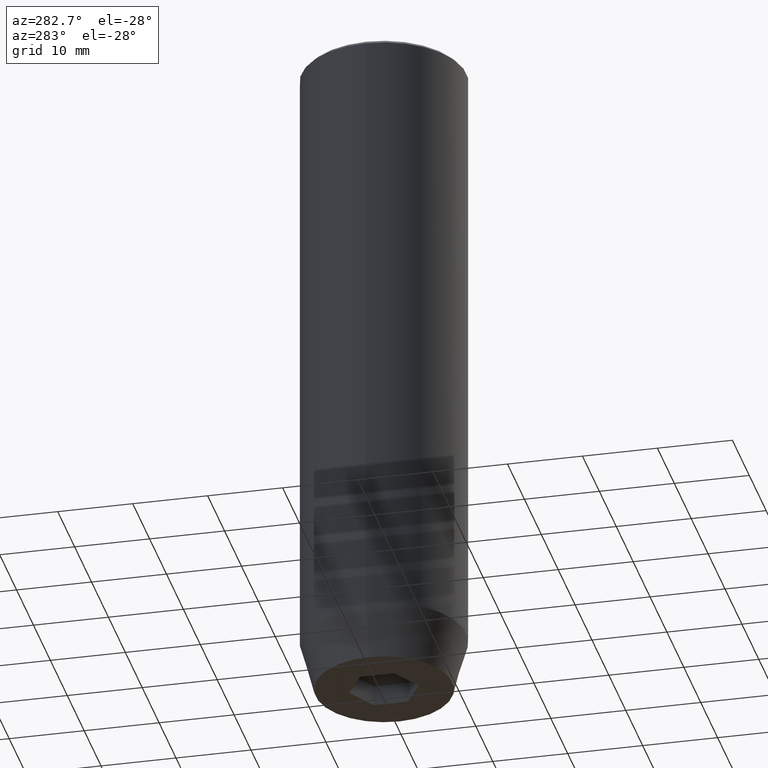
[diagram: clean part render]
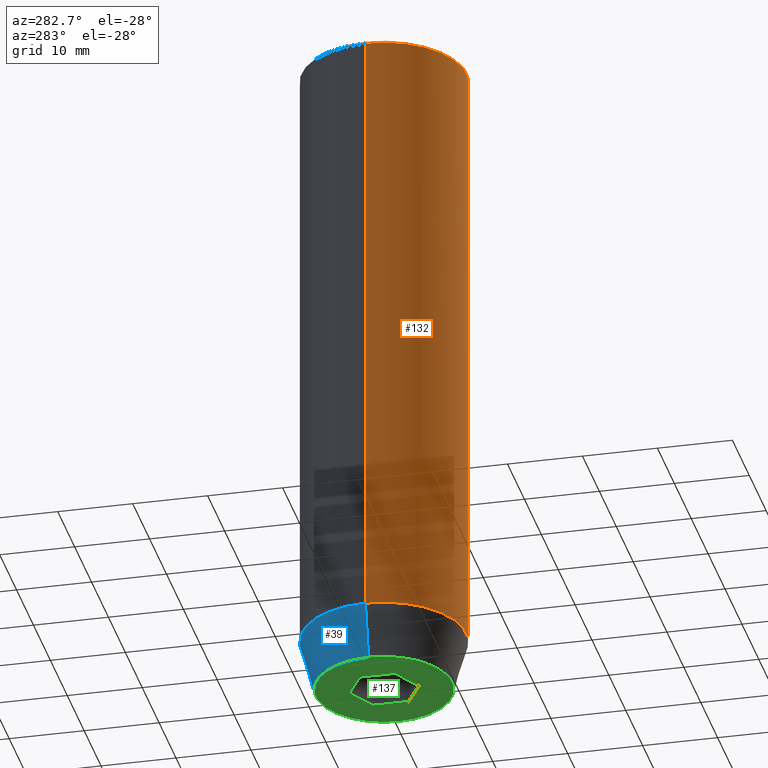
[diagram: same view with three faces highlighted in distinct colors, each labeled with its STEP entity id]
A machine part, auxiliary view with three faces highlighted in distinct colors.
Their STEP definitions:

[orange] entity #132 — the highlighted cylindrical surface (partial cylindrical patch) has radius 11 mm, axis along (-0, -0, 1).
#13 = ORIENTED_EDGE ( 'NONE', *, *, #33, .T. ) ;
#33 = EDGE_CURVE ( 'NONE', #244, #201, #260, .T. ) ;
#40 = CARTESIAN_POINT ( 'NONE',  ( -11.00000000000000000, 1.347111479062088405E-15, 0.000000000000000000 ) ) ;
#77 = AXIS2_PLACEMENT_3D ( 'NONE', #457, #363, #146 ) ;
#80 = CARTESIAN_POINT ( 'NONE',  ( -11.00000000000000000, 1.347111479062088405E-15, -0.5000000000000004441 ) ) ;
#83 = VECTOR ( 'NONE', #401, 1000.000000000000000 ) ;
#114 = CARTESIAN_POINT ( 'NONE',  ( -11.00000000000000000, 1.347111479062088405E-15, -82.99999999999998579 ) ) ;
#118 = VERTEX_POINT ( 'NONE', #179 ) ;
#132 = ADVANCED_FACE ( 'NONE', ( #325 ), #358, .T. ) ;
#146 = DIRECTION ( 'NONE',  ( 1.000000000000000000, 0.000000000000000000, 0.000000000000000000 ) ) ;
#163 = EDGE_CURVE ( 'NONE', #244, #344, #449, .T. ) ;
#175 = CIRCLE ( 'NONE', #335, 11.00000000000000000 ) ;
#179 = CARTESIAN_POINT ( 'NONE',  ( 11.00000000000000000, 0.000000000000000000, -0.5000000000000004441 ) ) ;
#181 = LINE ( 'NONE', #535, #83 ) ;
#201 = VERTEX_POINT ( 'NONE', #376 ) ;
#203 = EDGE_LOOP ( 'NONE', ( #326, #13, #518, #247 ) ) ;
#244 = VERTEX_POINT ( 'NONE', #114 ) ;
#247 = ORIENTED_EDGE ( 'NONE', *, *, #506, .T. ) ;
#260 = CIRCLE ( 'NONE', #345, 11.00000000000000000 ) ;
#293 = CARTESIAN_POINT ( 'NONE',  ( 0.000000000000000000, 0.000000000000000000, -82.99999999999998579 ) ) ;
#325 = FACE_OUTER_BOUND ( 'NONE', #203, .T. ) ;
#326 = ORIENTED_EDGE ( 'NONE', *, *, #163, .F. ) ;
#331 = DIRECTION ( 'NONE',  ( 0.000000000000000000, 0.000000000000000000, -1.000000000000000000 ) ) ;
#335 = AXIS2_PLACEMENT_3D ( 'NONE', #362, #331, #556 ) ;
#344 = VERTEX_POINT ( 'NONE', #80 ) ;
#345 = AXIS2_PLACEMENT_3D ( 'NONE', #293, #469, #415 ) ;
#358 = CYLINDRICAL_SURFACE ( 'NONE', #77, 11.00000000000000000 ) ;
#362 = CARTESIAN_POINT ( 'NONE',  ( 0.000000000000000000, 0.000000000000000000, -0.5000000000000004441 ) ) ;
#363 = DIRECTION ( 'NONE',  ( -0.000000000000000000, -0.000000000000000000, 1.000000000000000000 ) ) ;
#376 = CARTESIAN_POINT ( 'NONE',  ( 11.00000000000000000, 0.000000000000000000, -82.99999999999998579 ) ) ;
#401 = DIRECTION ( 'NONE',  ( -0.000000000000000000, -0.000000000000000000, 1.000000000000000000 ) ) ;
#415 = DIRECTION ( 'NONE',  ( 1.000000000000000000, 0.000000000000000000, 0.000000000000000000 ) ) ;
#440 = VECTOR ( 'NONE', #500, 1000.000000000000000 ) ;
#447 = EDGE_CURVE ( 'NONE', #201, #118, #181, .T. ) ;
#449 = LINE ( 'NONE', #40, #440 ) ;
#457 = CARTESIAN_POINT ( 'NONE',  ( 0.000000000000000000, 0.000000000000000000, 0.000000000000000000 ) ) ;
#469 = DIRECTION ( 'NONE',  ( -0.000000000000000000, -0.000000000000000000, 1.000000000000000000 ) ) ;
#500 = DIRECTION ( 'NONE',  ( -0.000000000000000000, -0.000000000000000000, 1.000000000000000000 ) ) ;
#506 = EDGE_CURVE ( 'NONE', #118, #344, #175, .T. ) ;
#518 = ORIENTED_EDGE ( 'NONE', *, *, #447, .T. ) ;
#535 = CARTESIAN_POINT ( 'NONE',  ( 11.00000000000000000, 0.000000000000000000, 0.000000000000000000 ) ) ;
#556 = DIRECTION ( 'NONE',  ( 1.000000000000000000, 0.000000000000000000, 0.000000000000000000 ) ) ;

[blue] entity #39 — the highlighted conical surface has half-angle 15 deg.
#2 = DIRECTION ( 'NONE',  ( -0.000000000000000000, -0.000000000000000000, 1.000000000000000000 ) ) ;
#29 = EDGE_LOOP ( 'NONE', ( #557, #499, #341, #269 ) ) ;
#39 = ADVANCED_FACE ( 'NONE', ( #48 ), #235, .T. ) ;
#48 = FACE_OUTER_BOUND ( 'NONE', #29, .T. ) ;
#61 = DIRECTION ( 'NONE',  ( 1.000000000000000000, 0.000000000000000000, 0.000000000000000000 ) ) ;
#64 = CARTESIAN_POINT ( 'NONE',  ( 9.124355652982133691, 0.000000000000000000, -90.00000000000000000 ) ) ;
#85 = CARTESIAN_POINT ( 'NONE',  ( -11.00000000000000000, 1.347111479062088405E-15, -82.99999999999998579 ) ) ;
#92 = DIRECTION ( 'NONE',  ( 1.000000000000000000, 0.000000000000000000, 0.000000000000000000 ) ) ;
#95 = LINE ( 'NONE', #85, #208 ) ;
#96 = CARTESIAN_POINT ( 'NONE',  ( 0.000000000000000000, 0.000000000000000000, -90.00000000000000000 ) ) ;
#110 = CARTESIAN_POINT ( 'NONE',  ( 0.000000000000000000, 0.000000000000000000, -82.99999999999998579 ) ) ;
#114 = CARTESIAN_POINT ( 'NONE',  ( -11.00000000000000000, 1.347111479062088405E-15, -82.99999999999998579 ) ) ;
#129 = AXIS2_PLACEMENT_3D ( 'NONE', #96, #566, #61 ) ;
#131 = DIRECTION ( 'NONE',  ( -0.2588190451025213501, 3.169619151431772337E-17, 0.9659258262890680902 ) ) ;
#152 = LINE ( 'NONE', #471, #209 ) ;
#169 = AXIS2_PLACEMENT_3D ( 'NONE', #110, #292, #520 ) ;
#189 = EDGE_CURVE ( 'NONE', #564, #278, #531, .T. ) ;
#197 = DIRECTION ( 'NONE',  ( 0.2588190451025213501, 0.000000000000000000, 0.9659258262890680902 ) ) ;
#201 = VERTEX_POINT ( 'NONE', #376 ) ;
#208 = VECTOR ( 'NONE', #131, 1000.000000000000000 ) ;
#209 = VECTOR ( 'NONE', #197, 1000.000000000000000 ) ;
#235 = CONICAL_SURFACE ( 'NONE', #462, 11.00000000000000000, 0.2617993877991500740 ) ;
#244 = VERTEX_POINT ( 'NONE', #114 ) ;
#269 = ORIENTED_EDGE ( 'NONE', *, *, #525, .F. ) ;
#278 = VERTEX_POINT ( 'NONE', #388 ) ;
#292 = DIRECTION ( 'NONE',  ( -0.000000000000000000, -0.000000000000000000, 1.000000000000000000 ) ) ;
#341 = ORIENTED_EDGE ( 'NONE', *, *, #528, .F. ) ;
#376 = CARTESIAN_POINT ( 'NONE',  ( 11.00000000000000000, 0.000000000000000000, -82.99999999999998579 ) ) ;
#388 = CARTESIAN_POINT ( 'NONE',  ( -9.124355652982133691, 1.232261386766375507E-15, -90.00000000000000000 ) ) ;
#407 = CARTESIAN_POINT ( 'NONE',  ( 0.000000000000000000, 0.000000000000000000, -82.99999999999998579 ) ) ;
#462 = AXIS2_PLACEMENT_3D ( 'NONE', #407, #2, #92 ) ;
#471 = CARTESIAN_POINT ( 'NONE',  ( 11.00000000000000000, 0.000000000000000000, -82.99999999999998579 ) ) ;
#488 = CIRCLE ( 'NONE', #169, 11.00000000000000000 ) ;
#492 = EDGE_CURVE ( 'NONE', #278, #244, #95, .T. ) ;
#499 = ORIENTED_EDGE ( 'NONE', *, *, #492, .T. ) ;
#520 = DIRECTION ( 'NONE',  ( 1.000000000000000000, 0.000000000000000000, 0.000000000000000000 ) ) ;
#525 = EDGE_CURVE ( 'NONE', #564, #201, #152, .T. ) ;
#528 = EDGE_CURVE ( 'NONE', #201, #244, #488, .T. ) ;
#531 = CIRCLE ( 'NONE', #129, 9.124355652982133691 ) ;
#557 = ORIENTED_EDGE ( 'NONE', *, *, #189, .T. ) ;
#564 = VERTEX_POINT ( 'NONE', #64 ) ;
#566 = DIRECTION ( 'NONE',  ( -0.000000000000000000, -0.000000000000000000, 1.000000000000000000 ) ) ;

[green] entity #137 — the highlighted planar face has unit normal (0, 0, -1).
#16 = ORIENTED_EDGE ( 'NONE', *, *, #214, .F. ) ;
#18 = EDGE_CURVE ( 'NONE', #408, #190, #22, .T. ) ;
#22 = LINE ( 'NONE', #377, #546 ) ;
#23 = CARTESIAN_POINT ( 'NONE',  ( 4.000000000000000000, -2.309401076758502480, -90.00000000000000000 ) ) ;
#42 = LINE ( 'NONE', #314, #524 ) ;
#61 = DIRECTION ( 'NONE',  ( 1.000000000000000000, 0.000000000000000000, 0.000000000000000000 ) ) ;
#64 = CARTESIAN_POINT ( 'NONE',  ( 9.124355652982133691, 0.000000000000000000, -90.00000000000000000 ) ) ;
#65 = EDGE_CURVE ( 'NONE', #277, #97, #42, .T. ) ;
#70 = EDGE_CURVE ( 'NONE', #278, #564, #347, .T. ) ;
#78 = VECTOR ( 'NONE', #295, 1000.000000000000114 ) ;
#94 = AXIS2_PLACEMENT_3D ( 'NONE', #418, #270, #537 ) ;
#96 = CARTESIAN_POINT ( 'NONE',  ( 0.000000000000000000, 0.000000000000000000, -90.00000000000000000 ) ) ;
#97 = VERTEX_POINT ( 'NONE', #144 ) ;
#101 = LINE ( 'NONE', #423, #177 ) ;
#112 = ORIENTED_EDGE ( 'NONE', *, *, #18, .F. ) ;
#124 = EDGE_CURVE ( 'NONE', #190, #277, #220, .T. ) ;
#129 = AXIS2_PLACEMENT_3D ( 'NONE', #96, #566, #61 ) ;
#136 = FACE_BOUND ( 'NONE', #273, .T. ) ;
#137 = ADVANCED_FACE ( 'NONE', ( #136, #223 ), #276, .T. ) ;
#144 = CARTESIAN_POINT ( 'NONE',  ( 4.000000000000000000, 2.309401076758503368, -90.00000000000000000 ) ) ;
#177 = VECTOR ( 'NONE', #338, 1000.000000000000114 ) ;
#189 = EDGE_CURVE ( 'NONE', #564, #278, #531, .T. ) ;
#190 = VERTEX_POINT ( 'NONE', #342 ) ;
#202 = CARTESIAN_POINT ( 'NONE',  ( 2.168404344971008868E-16, 4.618802153517006737, -90.00000000000000000 ) ) ;
#206 = ORIENTED_EDGE ( 'NONE', *, *, #498, .F. ) ;
#207 = CARTESIAN_POINT ( 'NONE',  ( -4.000000000000000000, -2.309401076758503368, -90.00000000000000000 ) ) ;
#214 = EDGE_CURVE ( 'NONE', #330, #408, #101, .T. ) ;
#220 = LINE ( 'NONE', #550, #487 ) ;
#223 = FACE_OUTER_BOUND ( 'NONE', #458, .T. ) ;
#238 = ORIENTED_EDGE ( 'NONE', *, *, #65, .F. ) ;
#250 = LINE ( 'NONE', #370, #78 ) ;
#263 = CARTESIAN_POINT ( 'NONE',  ( 4.000000000000000000, 0.000000000000000000, -90.00000000000000000 ) ) ;
#270 = DIRECTION ( 'NONE',  ( 0.000000000000000000, 0.000000000000000000, -1.000000000000000000 ) ) ;
#273 = EDGE_LOOP ( 'NONE', ( #431, #112, #16, #549, #206, #238 ) ) ;
#276 = PLANE ( 'NONE',  #94 ) ;
#277 = VERTEX_POINT ( 'NONE', #202 ) ;
#278 = VERTEX_POINT ( 'NONE', #388 ) ;
#280 = DIRECTION ( 'NONE',  ( 1.000000000000000000, 0.000000000000000000, 0.000000000000000000 ) ) ;
#290 = DIRECTION ( 'NONE',  ( 0.000000000000000000, 1.000000000000000000, 0.000000000000000000 ) ) ;
#295 = DIRECTION ( 'NONE',  ( -0.8660254037844384856, -0.5000000000000002220, 0.000000000000000000 ) ) ;
#305 = CARTESIAN_POINT ( 'NONE',  ( 4.336808689942017736E-16, -4.618802153517006737, -90.00000000000000000 ) ) ;
#314 = CARTESIAN_POINT ( 'NONE',  ( 2.000000000000000444, 3.464101615137754386, -90.00000000000000000 ) ) ;
#330 = VERTEX_POINT ( 'NONE', #305 ) ;
#338 = DIRECTION ( 'NONE',  ( -0.8660254037844384856, 0.5000000000000002220, 0.000000000000000000 ) ) ;
#342 = CARTESIAN_POINT ( 'NONE',  ( -4.000000000000000000, 2.309401076758503368, -90.00000000000000000 ) ) ;
#347 = CIRCLE ( 'NONE', #432, 9.124355652982133691 ) ;
#348 = ORIENTED_EDGE ( 'NONE', *, *, #70, .F. ) ;
#370 = CARTESIAN_POINT ( 'NONE',  ( 2.000000000000000888, -3.464101615137754386, -90.00000000000000000 ) ) ;
#377 = CARTESIAN_POINT ( 'NONE',  ( -4.000000000000000000, 0.000000000000000000, -90.00000000000000000 ) ) ;
#388 = CARTESIAN_POINT ( 'NONE',  ( -9.124355652982133691, 1.232261386766375507E-15, -90.00000000000000000 ) ) ;
#402 = CARTESIAN_POINT ( 'NONE',  ( 0.000000000000000000, 0.000000000000000000, -90.00000000000000000 ) ) ;
#408 = VERTEX_POINT ( 'NONE', #207 ) ;
#411 = DIRECTION ( 'NONE',  ( 0.8660254037844387076, 0.5000000000000001110, 0.000000000000000000 ) ) ;
#418 = CARTESIAN_POINT ( 'NONE',  ( 0.000000000000000000, 9.124355652982133691, -90.00000000000000000 ) ) ;
#423 = CARTESIAN_POINT ( 'NONE',  ( -2.000000000000000888, -3.464101615137754386, -90.00000000000000000 ) ) ;
#431 = ORIENTED_EDGE ( 'NONE', *, *, #124, .F. ) ;
#432 = AXIS2_PLACEMENT_3D ( 'NONE', #402, #585, #280 ) ;
#441 = VECTOR ( 'NONE', #496, 1000.000000000000000 ) ;
#458 = EDGE_LOOP ( 'NONE', ( #464, #348 ) ) ;
#464 = ORIENTED_EDGE ( 'NONE', *, *, #189, .F. ) ;
#487 = VECTOR ( 'NONE', #411, 999.9999999999998863 ) ;
#496 = DIRECTION ( 'NONE',  ( 0.000000000000000000, -1.000000000000000000, 0.000000000000000000 ) ) ;
#498 = EDGE_CURVE ( 'NONE', #97, #562, #502, .T. ) ;
#502 = LINE ( 'NONE', #263, #441 ) ;
#517 = EDGE_CURVE ( 'NONE', #562, #330, #250, .T. ) ;
#524 = VECTOR ( 'NONE', #548, 1000.000000000000000 ) ;
#531 = CIRCLE ( 'NONE', #129, 9.124355652982133691 ) ;
#537 = DIRECTION ( 'NONE',  ( -1.000000000000000000, 0.000000000000000000, -0.000000000000000000 ) ) ;
#546 = VECTOR ( 'NONE', #290, 1000.000000000000000 ) ;
#548 = DIRECTION ( 'NONE',  ( 0.8660254037844385966, -0.5000000000000001110, 0.000000000000000000 ) ) ;
#549 = ORIENTED_EDGE ( 'NONE', *, *, #517, .F. ) ;
#550 = CARTESIAN_POINT ( 'NONE',  ( -2.000000000000000000, 3.464101615137754830, -90.00000000000000000 ) ) ;
#562 = VERTEX_POINT ( 'NONE', #23 ) ;
#564 = VERTEX_POINT ( 'NONE', #64 ) ;
#566 = DIRECTION ( 'NONE',  ( -0.000000000000000000, -0.000000000000000000, 1.000000000000000000 ) ) ;
#585 = DIRECTION ( 'NONE',  ( -0.000000000000000000, -0.000000000000000000, 1.000000000000000000 ) ) ;